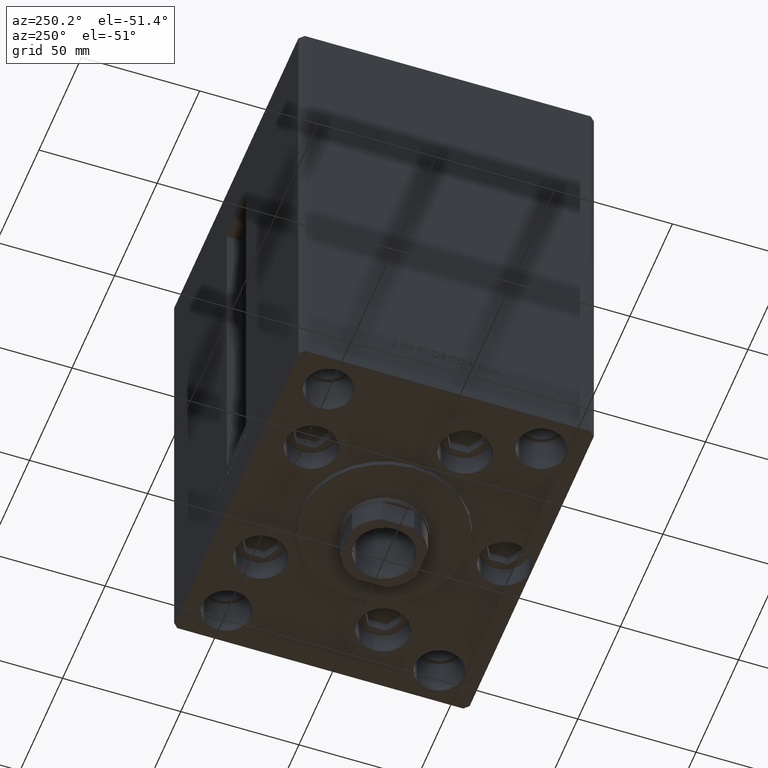
[diagram: clean part render]
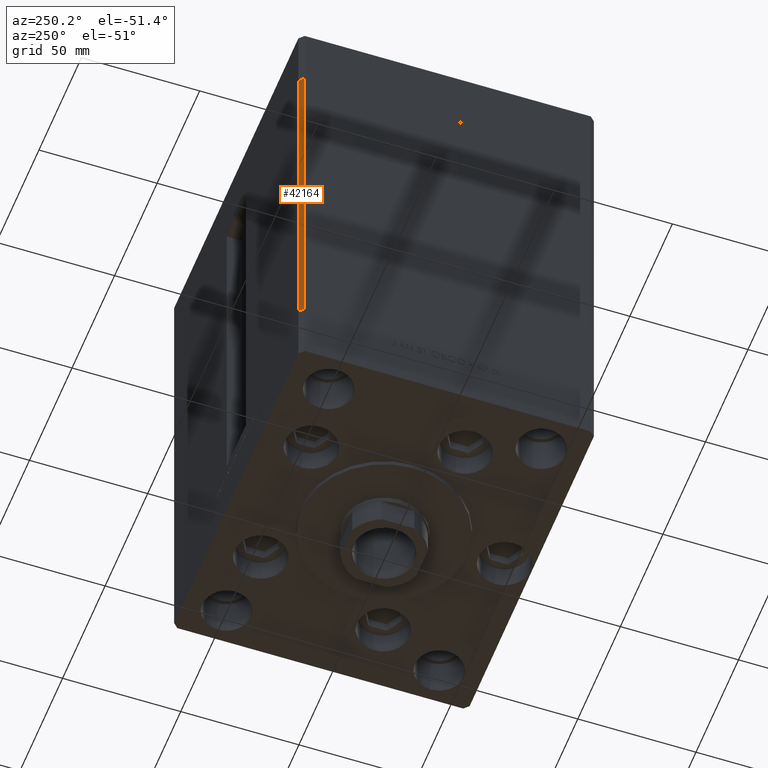
[diagram: same view with one face highlighted and labeled with its STEP entity id]
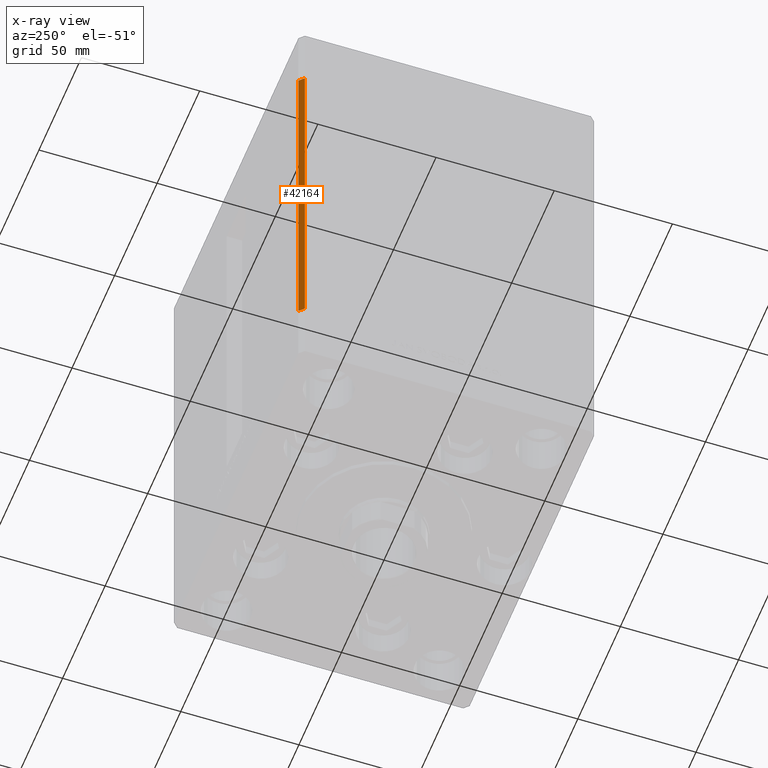
[diagram: x-ray of the same camera — body ghosted, the highlighted face saturated]
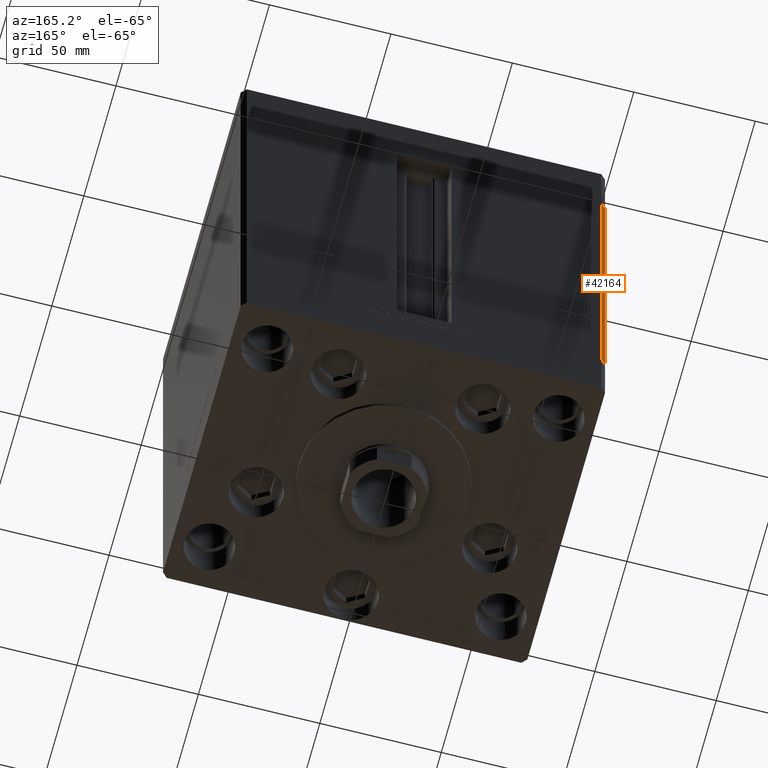
[diagram: same view with one face highlighted and labeled with its STEP entity id]
A machine part, auxiliary view. The second image highlights one B-rep face of the part: STEP entity #42164.
The next image is the same camera in x-ray: the body ghosted, the highlighted face saturated — about 0% of this face is hidden behind the body in this view.
A second angle (auxiliary view) of the same face is appended — the face is thin or edge-on in the first view.
In plain terms, the highlighted planar face has unit normal (0.7071, -0.7071, 0).
Its self-contained STEP definition (entity closure, byte-faithful):
#2915 = AXIS2_PLACEMENT_3D ( 'NONE', #42241, #22464, #34347 ) ;
#4173 = PLANE ( 'NONE',  #2915 ) ;
#5241 = LINE ( 'NONE', #27250, #45250 ) ;
#6026 = CARTESIAN_POINT ( 'NONE',  ( -73.00000000000001421, 62.50000000000000000, 0.000000000000000000 ) ) ;
#8272 = CARTESIAN_POINT ( 'NONE',  ( -73.00000000000001421, 62.50000000000000000, 0.000000000000000000 ) ) ;
#11039 = LINE ( 'NONE', #8272, #29461 ) ;
#13849 = CARTESIAN_POINT ( 'NONE',  ( -73.00000000000001421, 62.50000000000000000, 147.0000000000000000 ) ) ;
#15653 = DIRECTION ( 'NONE',  ( -0.000000000000000000, -0.000000000000000000, -1.000000000000000000 ) ) ;
#17306 = LINE ( 'NONE', #13849, #29497 ) ;
#18872 = CARTESIAN_POINT ( 'NONE',  ( -75.00000000000001421, 60.50000000000000000, 147.0000000000000000 ) ) ;
#22464 = DIRECTION ( 'NONE',  ( 0.7071067811865475727, -0.7071067811865475727, 0.000000000000000000 ) ) ;
#24579 = EDGE_CURVE ( 'NONE', #25992, #39558, #48222, .T. ) ;
#25992 = VERTEX_POINT ( 'NONE', #38134 ) ;
#26708 = EDGE_LOOP ( 'NONE', ( #31095, #34921, #40406, #48632 ) ) ;
#27250 = CARTESIAN_POINT ( 'NONE',  ( -75.00000000000001421, 60.50000000000000000, 147.0000000000000000 ) ) ;
#28225 = EDGE_CURVE ( 'NONE', #39558, #41552, #5241, .T. ) ;
#28720 = EDGE_CURVE ( 'NONE', #32141, #41552, #11039, .T. ) ;
#29164 = CARTESIAN_POINT ( 'NONE',  ( -73.00000000000001421, 62.50000000000000000, 147.0000000000000000 ) ) ;
#29388 = EDGE_CURVE ( 'NONE', #25992, #32141, #17306, .T. ) ;
#29461 = VECTOR ( 'NONE', #38458, 1000.000000000000114 ) ;
#29497 = VECTOR ( 'NONE', #47488, 1000.000000000000000 ) ;
#30400 = FACE_OUTER_BOUND ( 'NONE', #26708, .T. ) ;
#31095 = ORIENTED_EDGE ( 'NONE', *, *, #28720, .T. ) ;
#32141 = VERTEX_POINT ( 'NONE', #6026 ) ;
#34347 = DIRECTION ( 'NONE',  ( 0.7071067811865474617, 0.7071067811865474617, 0.000000000000000000 ) ) ;
#34921 = ORIENTED_EDGE ( 'NONE', *, *, #28225, .F. ) ;
#36499 = CARTESIAN_POINT ( 'NONE',  ( -75.00000000000001421, 60.50000000000000000, 0.000000000000000000 ) ) ;
#38134 = CARTESIAN_POINT ( 'NONE',  ( -73.00000000000001421, 62.50000000000000000, 147.0000000000000000 ) ) ;
#38458 = DIRECTION ( 'NONE',  ( -0.7071067811865474617, -0.7071067811865474617, 0.000000000000000000 ) ) ;
#39558 = VERTEX_POINT ( 'NONE', #18872 ) ;
#40406 = ORIENTED_EDGE ( 'NONE', *, *, #24579, .F. ) ;
#41433 = DIRECTION ( 'NONE',  ( -0.7071067811865474617, -0.7071067811865474617, 0.000000000000000000 ) ) ;
#41552 = VERTEX_POINT ( 'NONE', #36499 ) ;
#42164 = ADVANCED_FACE ( 'NONE', ( #30400 ), #4173, .F. ) ;
#42241 = CARTESIAN_POINT ( 'NONE',  ( -73.00000000000001421, 62.50000000000000000, 147.0000000000000000 ) ) ;
#45250 = VECTOR ( 'NONE', #15653, 1000.000000000000000 ) ;
#47488 = DIRECTION ( 'NONE',  ( -0.000000000000000000, -0.000000000000000000, -1.000000000000000000 ) ) ;
#47523 = VECTOR ( 'NONE', #41433, 1000.000000000000114 ) ;
#48222 = LINE ( 'NONE', #29164, #47523 ) ;
#48632 = ORIENTED_EDGE ( 'NONE', *, *, #29388, .T. ) ;